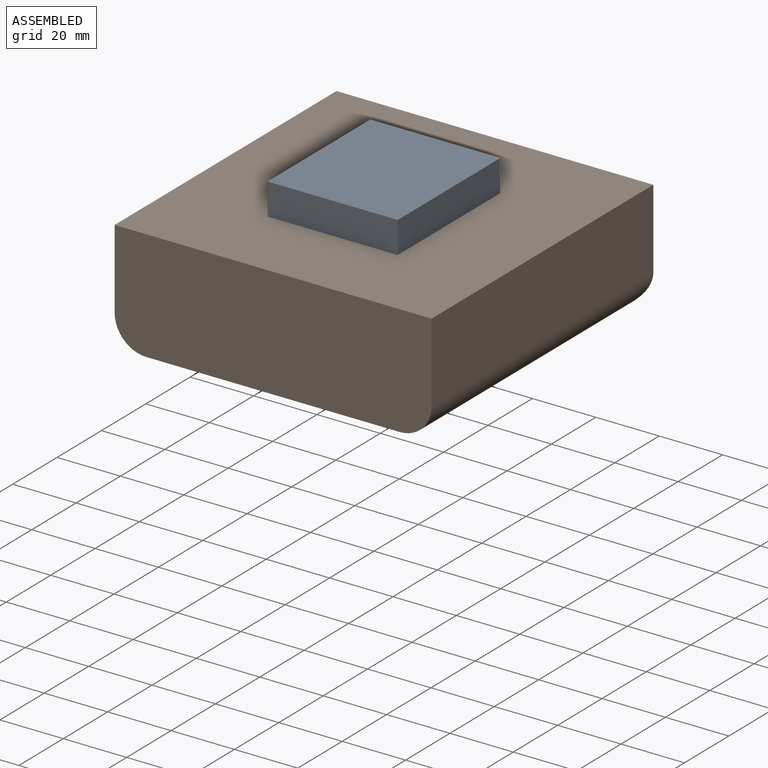
[diagram: assembled view]
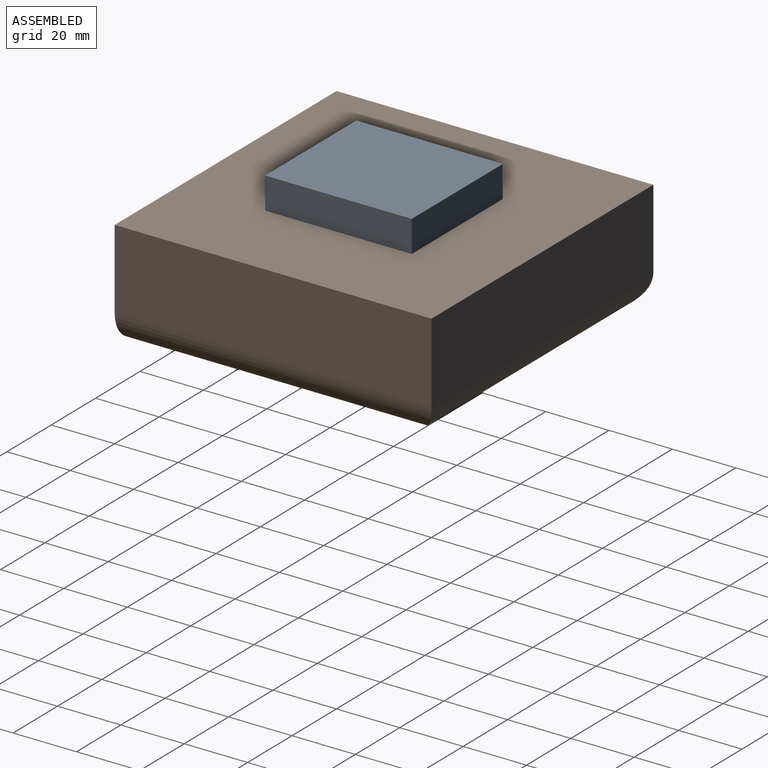
[diagram: assembled view, second angle]
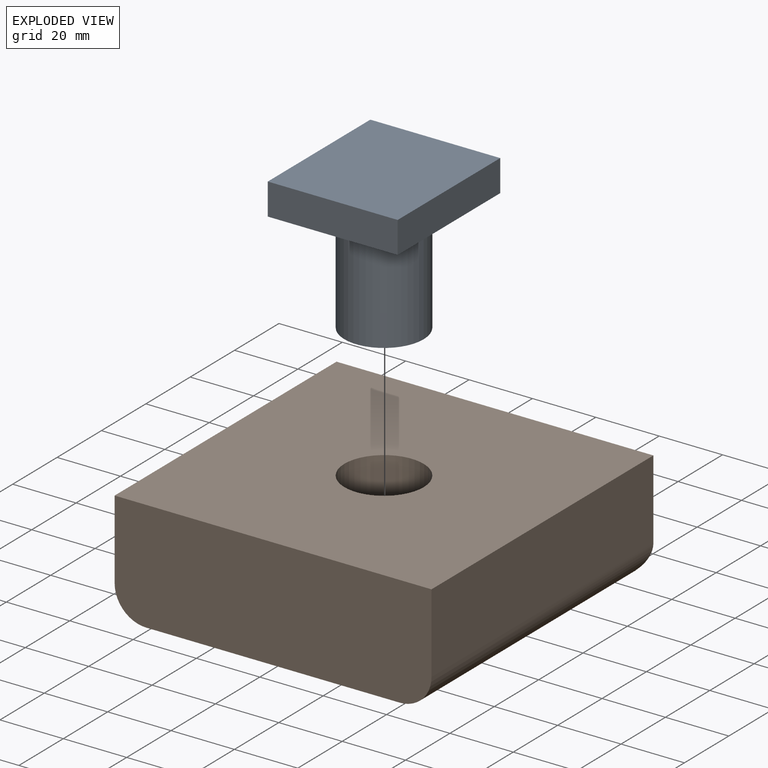
[diagram: exploded view]
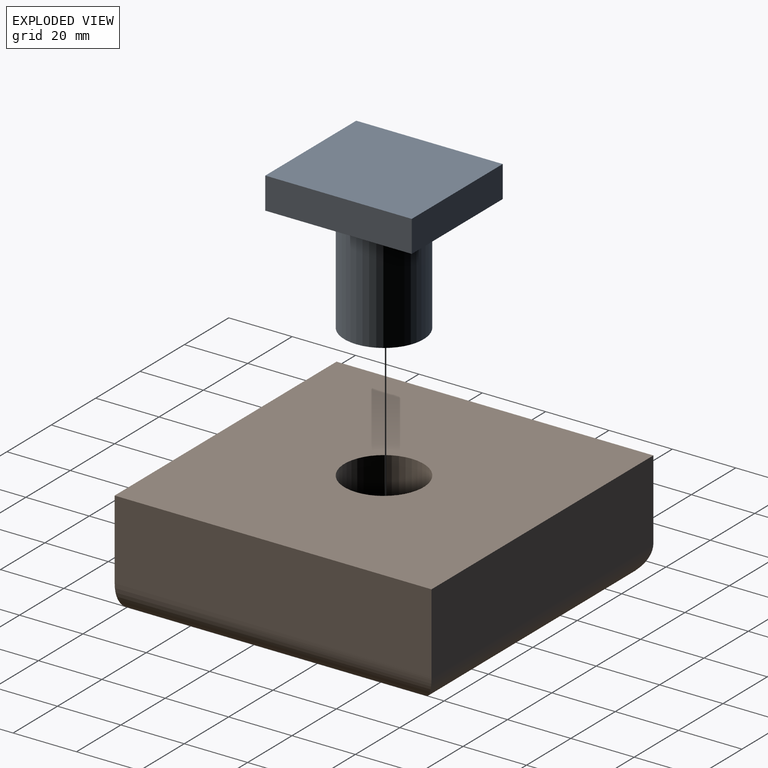
[diagram: exploded view, second angle]
ASSEMBLY  parts=2 mates=2
PART A: 8 faces, bbox 41x46.2x45 mm
  f0: cylinder r=12.5mm len=35mm, axis (0,0,-1), area 2748.9mm2, adj f1,f7
  f1: plane 25x25mm, normal (0,0,1), area 490.9mm2, adj f0
  f2: plane 46.22x10mm, normal (1,0,0), area 462.2mm2, adj f3,f5,f6,f7
  f3: plane 40.99x10mm, normal (0,-1,0), area 409.9mm2, adj f2,f4,f6,f7
  f4: plane 46.22x10mm, normal (-1,0,0), area 462.2mm2, adj f3,f5,f6,f7
  f5: plane 40.99x10mm, normal (0,1,0), area 409.9mm2, adj f2,f4,f6,f7
  f6: plane 46.22x40.99mm, normal (0,0,-1), area 1894.3mm2, adj f2,f3,f4,f5
  f7: plane 46.22x40.99mm, normal (0,0,1), area 1403.5mm2, adj f0,f2,f3,f4,f5
PART B: 10 faces, bbox 100x100x35 mm
  f0: cylinder r=10mm len=100mm, axis (-1,0,0), area 1456.6mm2, adj f1,f3,f8,f9
  f1: plane 100x25mm, normal (0,1,0), area 2500mm2, adj f0,f4,f5,f6
  f2: cylinder r=12.5mm len=35mm, axis (0,0,-1), area 2748.9mm2, adj f3,f4
  f3: plane 90x80mm, normal (0,0,-1), area 6709.1mm2, adj f0,f2,f7,f8,f9
  f4: plane 100x100mm, normal (0,0,1), area 9509.1mm2, adj f1,f2,f5,f6,f7
  f5: plane 100x25mm, normal (-1,0,0), area 2500mm2, adj f1,f4,f7,f8
  f6: plane 100x25mm, normal (1,0,0), area 2500mm2, adj f1,f4,f7,f9
  f7: plane 100x35mm, normal (0,-1,0), area 3457.1mm2, adj f3,f4,f5,f6,f8,f9
  f8: cylinder r=10mm len=100mm, axis (0,1,0), area 1513.7mm2, adj f0,f3,f5,f7
  f9: cylinder r=10mm len=100mm, axis (0,-1,0), area 1513.7mm2, adj f0,f3,f6,f7
PLACE A rot(axis=(1,0,0),180deg) t=(-18.61,34.01,35)mm
PLACE B t=(-18.61,34.01,0)mm fixed
MATE slider A.f0 <-> B.f2  axis (0,0,1) through (-18.61,34.01,35)mm
MATE fastened B.f2 <-> A.f0  axis (0,0,-1) through (-18.61,34.01,35)mm
